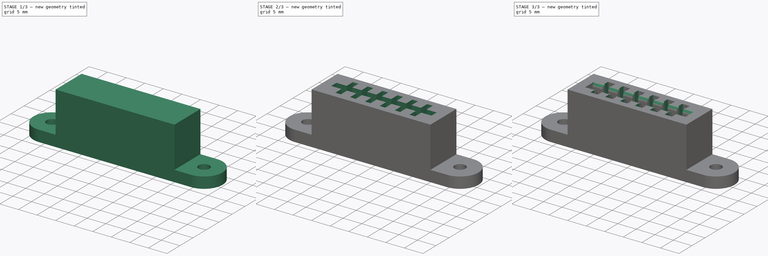
[diagram: build sequence overview — one tinted view per stage of 3, left to right]
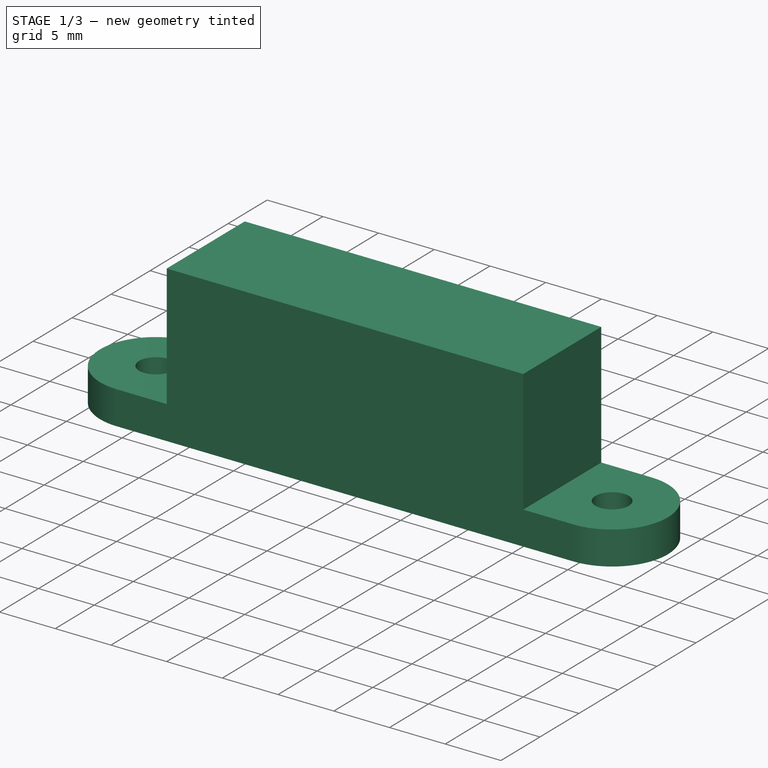
[diagram: stage 1 of 3 — iso view after this stage's code; geometry added in this stage tinted green]
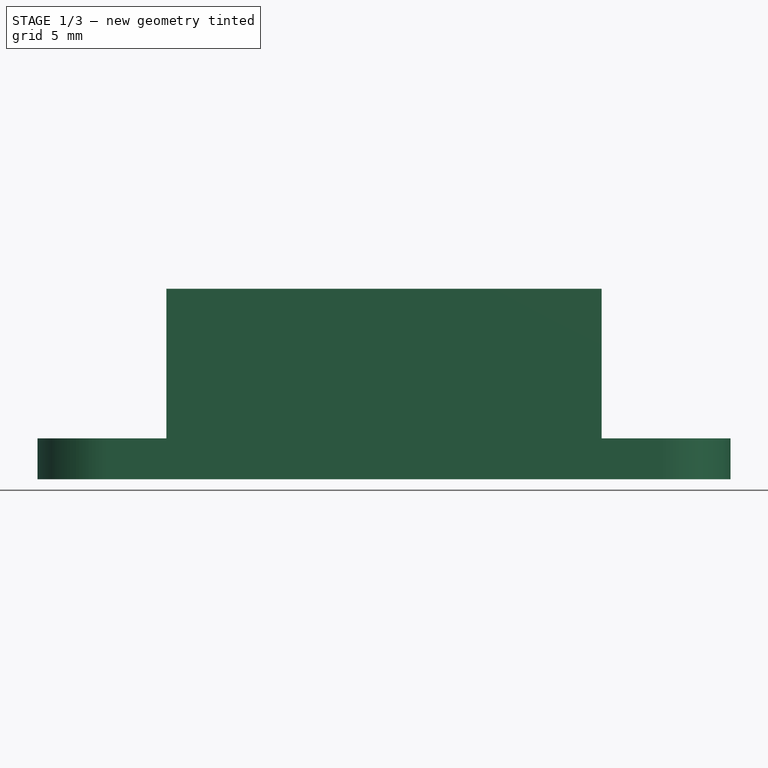
[diagram: stage 1 of 3 — front view after this stage's code; geometry added in this stage tinted green]
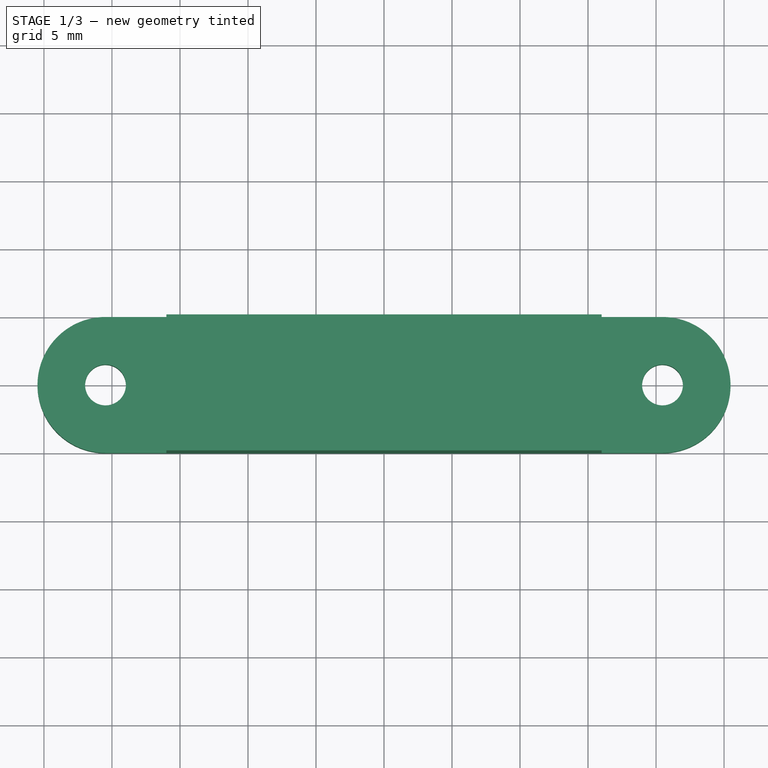
[diagram: stage 1 of 3 — top view after this stage's code; geometry added in this stage tinted green]
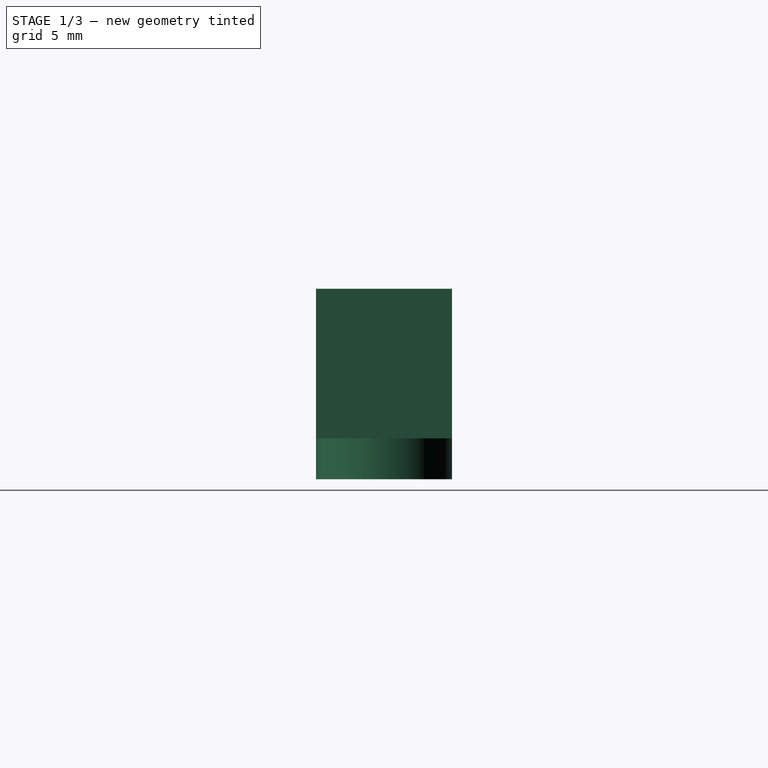
[diagram: stage 1 of 3 — right view after this stage's code; geometry added in this stage tinted green]
FCSTD DOCUMENT  (FreeCAD 0.16R6704 (Git))
Label: CONECTOR_COMMODORE
License: All rights reserved
LicenseURL: http://en.wikipedia.org/wiki/All_rights_reserved
objects: Sketcher::SketchObject×6, PartDesign::Pocket×4, PartDesign::Pad×2, PartDesign::Fillet×1
note: 19 computed .brp shape members not serialized (recipe doc carries the construction recipe); baked Part::Feature solids carry a one-line shape summary decoded from their .brp

FEATURE [Sketcher::SketchObject] Sketch
  sketch-geometry (4):
    g0: LineSegment StartX=-16 StartY=5 StartZ=0 EndX=16 EndY=5 EndZ=0
    g1: LineSegment StartX=16 StartY=5 StartZ=0 EndX=16 EndY=-5 EndZ=0
    g2: LineSegment StartX=16 StartY=-5 StartZ=0 EndX=-16 EndY=-5 EndZ=0
    g3: LineSegment StartX=-16 StartY=-5 StartZ=0 EndX=-16 EndY=5 EndZ=0
  constraints (12):
    c: Coincident(g0,g1)
    c: Coincident(g1,g2)
    c: Coincident(g2,g3)
    c: Coincident(g3,g0)
    c: Horizontal(g0)
    c: Horizontal(g2)
    c: Vertical(g1)
    c: Vertical(g3)
    c: Symmetric(g2,g0,g-1)
    c: Symmetric(g0,g0,g-2)
    c: DistanceX(g0,g0) = 32
    c: DistanceY(g1,g1) = 10
FEATURE [PartDesign::Pad] Pad
  Length = 14
  Length2 = 100
  Sketch = -> Sketch
  Type = 0
FEATURE [Sketcher::SketchObject] Sketch001
  ExternalGeometry = -> [Pad]
  Placement = pos=(0,0,0) rot=(1,0,0;3.14159rad)
  Support = -> Pad [Face5]
  sketch-geometry (6):
    g0: ArcOfCircle CenterX=-20.4745 CenterY=0 CenterZ=0 NormalX=0 NormalY=0 NormalZ=1 Radius=5 StartAngle=1.5708 EndAngle=4.71239
    g1: ArcOfCircle CenterX=20.4745 CenterY=0 CenterZ=0 NormalX=0 NormalY=0 NormalZ=1 Radius=5 StartAngle=4.71239 EndAngle=7.85398
    g2: LineSegment StartX=-20.4745 StartY=5 StartZ=0 EndX=20.4745 EndY=5 EndZ=0
    g3: LineSegment StartX=-20.4745 StartY=-5 StartZ=0 EndX=20.4745 EndY=-5 EndZ=0
    g4: Circle CenterX=-20.4745 CenterY=0 CenterZ=0 NormalX=0 NormalY=0 NormalZ=1 Radius=1.5
    g5: Circle CenterX=20.4745 CenterY=0 CenterZ=0 NormalX=0 NormalY=0 NormalZ=1 Radius=1.5
  constraints (17):
    c: PointOnObject(g0,g-1)
    c: PointOnObject(g1,g-1)
    c: Coincident(g2,g0)
    c: Coincident(g2,g1)
    c: Horizontal(g2)
    c: Coincident(g3,g0)
    c: Coincident(g3,g1)
    c: Horizontal(g3)
    c: PointOnObject(g-3,g2)
    c: PointOnObject(g-4,g3)
    c: Symmetric(g0,g1,g-2)
    c: Tangent(g1,g3)
    c: Coincident(g4,g0)
    c: Radius(g4) = 1.5
    c: Coincident(g5,g1)
    c: Radius(g5) = 1.5
    c: Tangent(g3,g0)
FEATURE [PartDesign::Pad] Pad001
  Length = 3
  Length2 = 100
  Reversed = true
  Sketch = -> Sketch001
  Type = 0
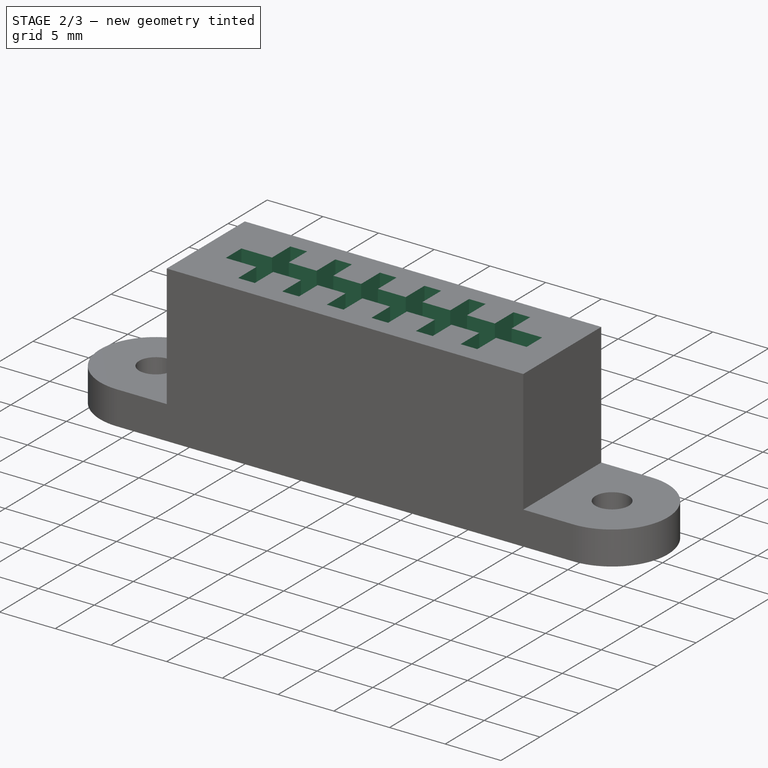
[diagram: stage 2 of 3 — iso view after this stage's code; geometry added in this stage tinted green]
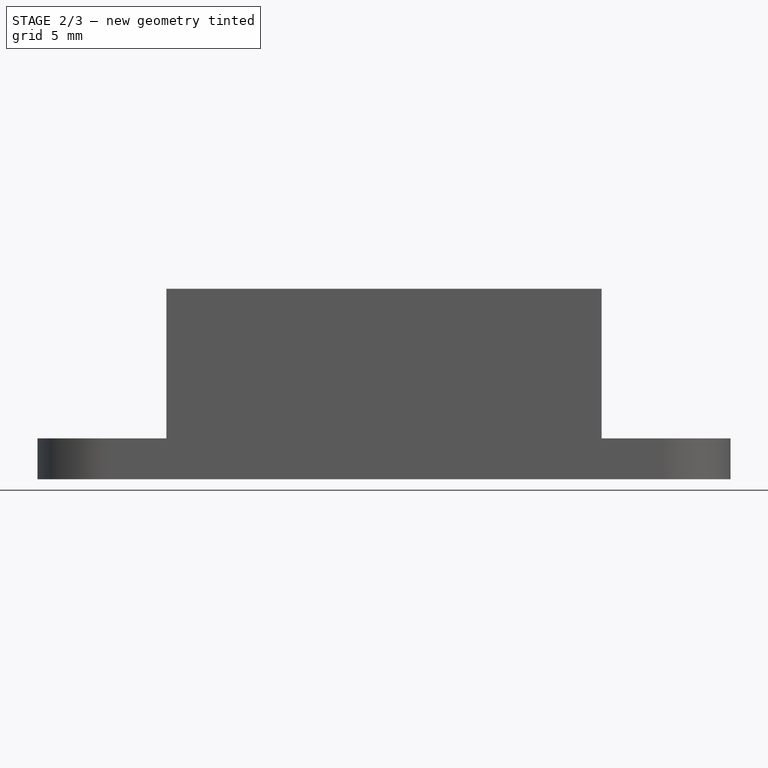
[diagram: stage 2 of 3 — front view after this stage's code; geometry added in this stage tinted green]
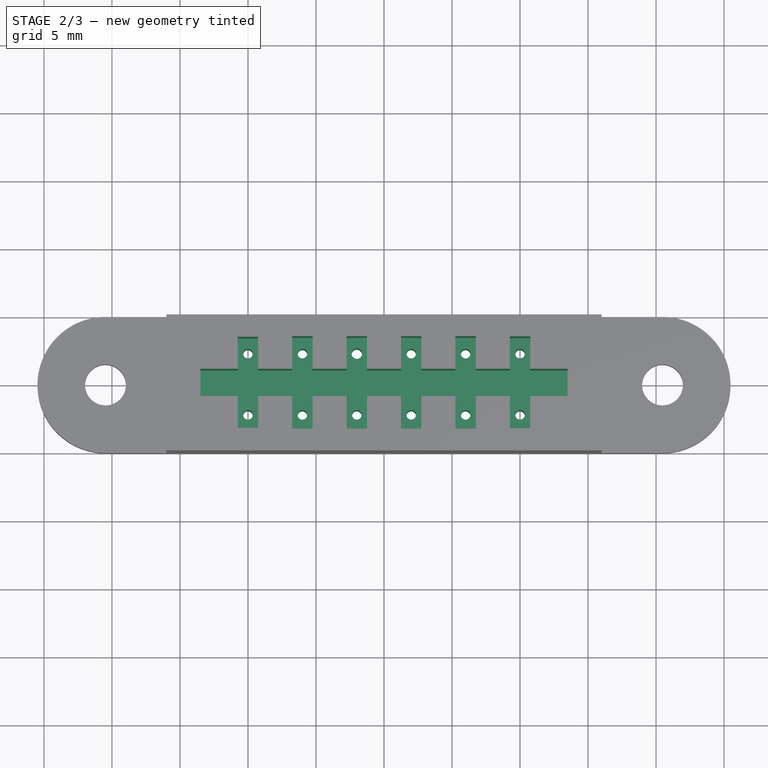
[diagram: stage 2 of 3 — top view after this stage's code; geometry added in this stage tinted green]
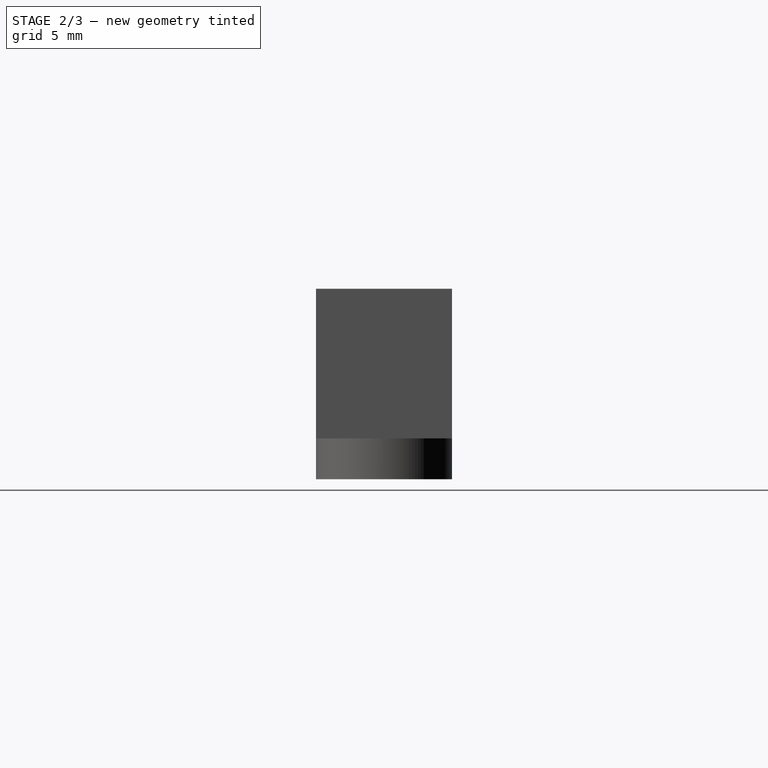
[diagram: stage 2 of 3 — right view after this stage's code; geometry added in this stage tinted green]
FEATURE [Sketcher::SketchObject] Sketch002
  Placement = pos=(0,0,14) rot=(0,0,1;0rad)
  Support = -> Pad001 [Face1]
  sketch-geometry (4):
    g0: LineSegment StartX=-13.5 StartY=1 StartZ=0 EndX=13.5 EndY=1 EndZ=0
    g1: LineSegment StartX=13.5 StartY=1 StartZ=0 EndX=13.5 EndY=-1 EndZ=0
    g2: LineSegment StartX=13.5 StartY=-1 StartZ=0 EndX=-13.5 EndY=-1 EndZ=0
    g3: LineSegment StartX=-13.5 StartY=-1 StartZ=0 EndX=-13.5 EndY=1 EndZ=0
  constraints (12):
    c: Coincident(g0,g1)
    c: Coincident(g1,g2)
    c: Coincident(g2,g3)
    c: Coincident(g3,g0)
    c: Horizontal(g0)
    c: Horizontal(g2)
    c: Vertical(g1)
    c: Vertical(g3)
    c: Symmetric(g2,g0,g-1)
    c: Symmetric(g0,g0,g-2)
    c: DistanceY(g1,g1) = 2
    c: DistanceX(g0,g0) = 27
FEATURE [PartDesign::Pocket] Pocket
  Length = 8
  Sketch = -> Sketch002
  Type = 0
FEATURE [Sketcher::SketchObject] Sketch003
  Placement = pos=(0,0,0) rot=(1,0,0;3.14159rad)
  Support = -> Pocket [Face15]
  sketch-geometry (12):
    g0: Circle CenterX=-10 CenterY=2.25 CenterZ=0 NormalX=0 NormalY=0 NormalZ=1 Radius=0.35
    g1: Circle CenterX=-6 CenterY=2.25 CenterZ=0 NormalX=0 NormalY=0 NormalZ=1 Radius=0.35
    g2: Circle CenterX=-2 CenterY=2.25 CenterZ=0 NormalX=0 NormalY=0 NormalZ=1 Radius=0.35
    g3: Circle CenterX=2 CenterY=2.25 CenterZ=0 NormalX=0 NormalY=0 NormalZ=1 Radius=0.35
    g4: Circle CenterX=6 CenterY=2.25 CenterZ=0 NormalX=0 NormalY=0 NormalZ=1 Radius=0.35
    g5: Circle CenterX=10 CenterY=2.25 CenterZ=0 NormalX=0 NormalY=0 NormalZ=1 Radius=0.35
    g6: Circle CenterX=-10 CenterY=-2.25 CenterZ=0 NormalX=0 NormalY=0 NormalZ=1 Radius=0.35
    g7: Circle CenterX=-6 CenterY=-2.25 CenterZ=0 NormalX=0 NormalY=0 NormalZ=1 Radius=0.35
    g8: Circle CenterX=-2 CenterY=-2.25 CenterZ=0 NormalX=0 NormalY=0 NormalZ=1 Radius=0.383924
    g9: Circle CenterX=2 CenterY=-2.25 CenterZ=0 NormalX=0 NormalY=0 NormalZ=1 Radius=0.35
    g10: Circle CenterX=6 CenterY=-2.25 CenterZ=0 NormalX=0 NormalY=0 NormalZ=1 Radius=0.35
    g11: Circle CenterX=10 CenterY=-2.25 CenterZ=0 NormalX=0 NormalY=0 NormalZ=1 Radius=0.35
  constraints (29):
    c: Radius(g0) = 0.35
    c: Radius(g1) = 0.35
    c: Radius(g2) = 0.35
    c: Radius(g3) = 0.35
    c: Radius(g4) = 0.35
    c: Radius(g5) = 0.35
    c: Radius(g6) = 0.35
    c: Radius(g7) = 0.35
    c: Radius(g9) = 0.35
    c: Radius(g10) = 0.35
    c: Radius(g11) = 0.35
    c: Symmetric(g6,g0,g-1)
    c: Symmetric(g7,g1,g-1)
    c: Symmetric(g8,g2,g-1)
    c: Symmetric(g9,g3,g-1)
    c: Symmetric(g10,g4,g-1)
    c: Symmetric(g11,g5,g-1)
    c: DistanceY(g6,g0) = 4.5
    c: DistanceY(g7,g1) = 4.5
    c: DistanceY(g8,g2) = 4.5
    c: DistanceY(g9,g3) = 4.5
    c: DistanceY(g10,g4) = 4.5
    c: DistanceY(g11,g5) = 4.5
    c: Symmetric(g3,g2,g-2)
    c: DistanceX(g2,g3) = 4
    c: DistanceX(g1,g2) = 4
    c: DistanceX(g0,g1) = 4
    c: DistanceX(g3,g4) = 4
    c: DistanceX(g4,g5) = 4
FEATURE [PartDesign::Pocket] Pocket001
  Length = 18
  Sketch = -> Sketch003
  Type = 0
FEATURE [Sketcher::SketchObject] Sketch004
  Placement = pos=(0,0,14) rot=(0,0,1;0rad)
  Support = -> Pocket001 [Face1]
  sketch-geometry (24):
    g0: LineSegment StartX=-10.75 StartY=3.35 StartZ=0 EndX=-9.25 EndY=3.35 EndZ=0
    g1: LineSegment StartX=-9.25 StartY=3.35 StartZ=0 EndX=-9.25 EndY=-3.35 EndZ=0
    g2: LineSegment StartX=-9.25 StartY=-3.35 StartZ=0 EndX=-10.75 EndY=-3.35 EndZ=0
    g3: LineSegment StartX=-10.75 StartY=-3.35 StartZ=0 EndX=-10.75 EndY=3.35 EndZ=0
    g4: LineSegment StartX=-6.75 StartY=3.4 StartZ=0 EndX=-5.25 EndY=3.4 EndZ=0
    g5: LineSegment StartX=-5.25 StartY=3.4 StartZ=0 EndX=-5.25 EndY=-3.4 EndZ=0
    g6: LineSegment StartX=-5.25 StartY=-3.4 StartZ=0 EndX=-6.75 EndY=-3.4 EndZ=0
    g7: LineSegment StartX=-6.75 StartY=-3.4 StartZ=0 EndX=-6.75 EndY=3.4 EndZ=0
    g8: LineSegment StartX=-2.75 StartY=3.4 StartZ=0 EndX=-1.25 EndY=3.4 EndZ=0
    g9: LineSegment StartX=-1.25 StartY=3.4 StartZ=0 EndX=-1.25 EndY=-3.4 EndZ=0
    g10: LineSegment StartX=-1.25 StartY=-3.4 StartZ=0 EndX=-2.75 EndY=-3.4 EndZ=0
    g11: LineSegment StartX=-2.75 StartY=-3.4 StartZ=0 EndX=-2.75 EndY=3.4 EndZ=0
    g12: LineSegment StartX=1.25 StartY=3.4 StartZ=0 EndX=2.75 EndY=3.4 EndZ=0
    g13: LineSegment StartX=2.75 StartY=3.4 StartZ=0 EndX=2.75 EndY=-3.4 EndZ=0
    g14: LineSegment StartX=2.75 StartY=-3.4 StartZ=0 EndX=1.25 EndY=-3.4 EndZ=0
    g15: LineSegment StartX=1.25 StartY=-3.4 StartZ=0 EndX=1.25 EndY=3.4 EndZ=0
    g16: LineSegment StartX=5.25 StartY=3.4 StartZ=0 EndX=6.75 EndY=3.4 EndZ=0
    g17: LineSegment StartX=6.75 StartY=3.4 StartZ=0 EndX=6.75 EndY=-3.4 EndZ=0
    g18: LineSegment StartX=6.75 StartY=-3.4 StartZ=0 EndX=5.25 EndY=-3.4 EndZ=0
    g19: LineSegment StartX=5.25 StartY=-3.4 StartZ=0 EndX=5.25 EndY=3.4 EndZ=0
    g20: LineSegment StartX=9.25 StartY=3.38583 StartZ=0 EndX=10.75 EndY=3.38583 EndZ=0
    g21: LineSegment StartX=10.75 StartY=3.38583 StartZ=0 EndX=10.75 EndY=-3.38583 EndZ=0
    g22: LineSegment StartX=10.75 StartY=-3.38583 StartZ=0 EndX=9.25 EndY=-3.38583 EndZ=0
    g23: LineSegment StartX=9.25 StartY=-3.38583 StartZ=0 EndX=9.25 EndY=3.38583 EndZ=0
  constraints (71):
    c: Coincident(g0,g1)
    c: Coincident(g1,g2)
    c: Coincident(g2,g3)
    c: Coincident(g3,g0)
    c: Horizontal(g0)
    c: Horizontal(g2)
    c: Vertical(g1)
    c: Vertical(g3)
    c: Coincident(g4,g5)
    c: Coincident(g5,g6)
    c: Coincident(g6,g7)
    c: Coincident(g7,g4)
    c: Horizontal(g4)
    c: Horizontal(g6)
    c: Vertical(g5)
    c: Vertical(g7)
    c: Coincident(g8,g9)
    c: Coincident(g9,g10)
    c: Coincident(g10,g11)
    c: Coincident(g11,g8)
    c: Horizontal(g8)
    c: Horizontal(g10)
    c: Vertical(g9)
    c: Vertical(g11)
    c: Coincident(g12,g13)
    c: Coincident(g13,g14)
    c: Coincident(g14,g15)
    c: Coincident(g15,g12)
    c: Horizontal(g12)
    c: Horizontal(g14)
    c: Vertical(g13)
    c: Vertical(g15)
    c: Coincident(g16,g17)
    c: Coincident(g17,g18)
    c: Coincident(g18,g19)
    c: Coincident(g19,g16)
    c: Horizontal(g16)
    c: Horizontal(g18)
    c: Vertical(g17)
    c: Vertical(g19)
    c: DistanceY(g1,g1) = 6.7
    c: DistanceY(g5,g5) = 6.8
    c: DistanceY(g9,g9) = 6.8
    c: DistanceY(g13,g13) = 6.8
    c: DistanceY(g17,g17) = 6.8
    c: Symmetric(g0,g1,g-1)
    c: Symmetric(g4,g5,g-1)
    c: Symmetric(g8,g9,g-1)
    c: Symmetric(g12,g13,g-1)
    c: Symmetric(g16,g17,g-1)
    c: Coincident(g20,g21)
    c: Coincident(g21,g22)
    c: Coincident(g22,g23)
    c: Coincident(g23,g20)
    c: Horizontal(g20)
    c: Horizontal(g22)
    c: Vertical(g21)
    c: Vertical(g23)
    c: Symmetric(g21,g20,g-1)
    c: DistanceX(g0,g0) = 1.5
    c: DistanceX(g4,g4) = 1.5
    c: DistanceX(g8,g8) = 1.5
    c: DistanceX(g12,g12) = 1.5
    c: DistanceX(g16,g16) = 1.5
    c: DistanceX(g20,g20) = 1.5
    c: DistanceX(g0,g4) = 4
    c: DistanceX(g4,g8) = 4
    c: DistanceX(g8,g12) = 4
    c: DistanceX(g12,g16) = 4
    c: DistanceX(g16,g20) = 4
    c: Symmetric(g8,g12,g-2)
FEATURE [PartDesign::Pocket] Pocket002
  Length = 8
  Sketch = -> Sketch004
  Type = 0
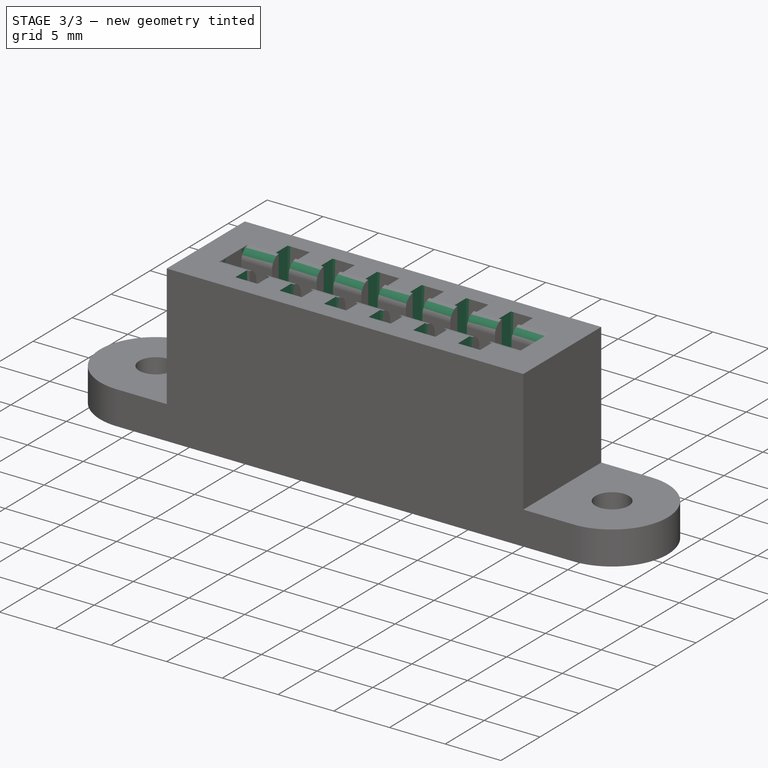
[diagram: stage 3 of 3 — iso view after this stage's code; geometry added in this stage tinted green]
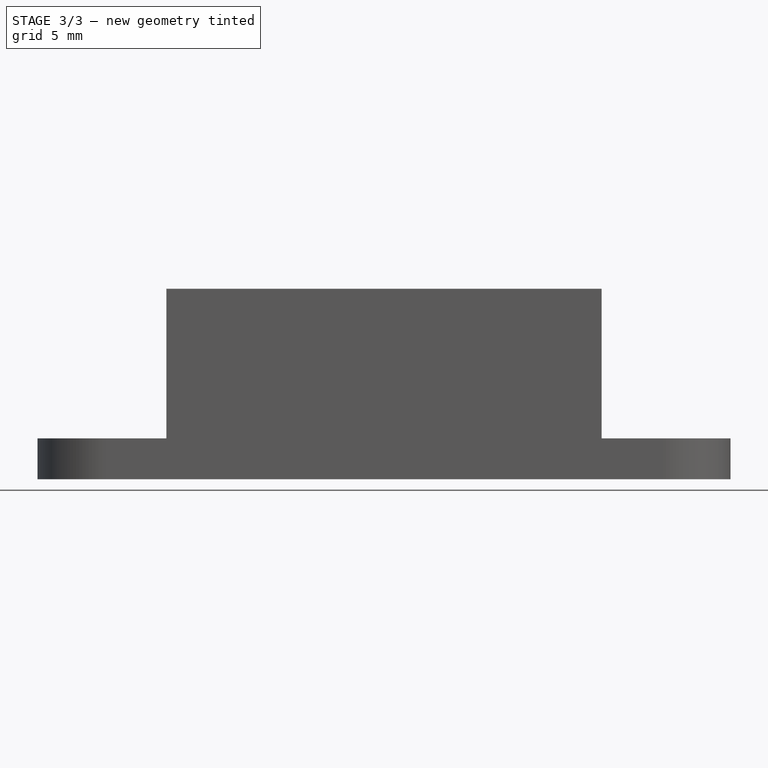
[diagram: stage 3 of 3 — front view after this stage's code; geometry added in this stage tinted green]
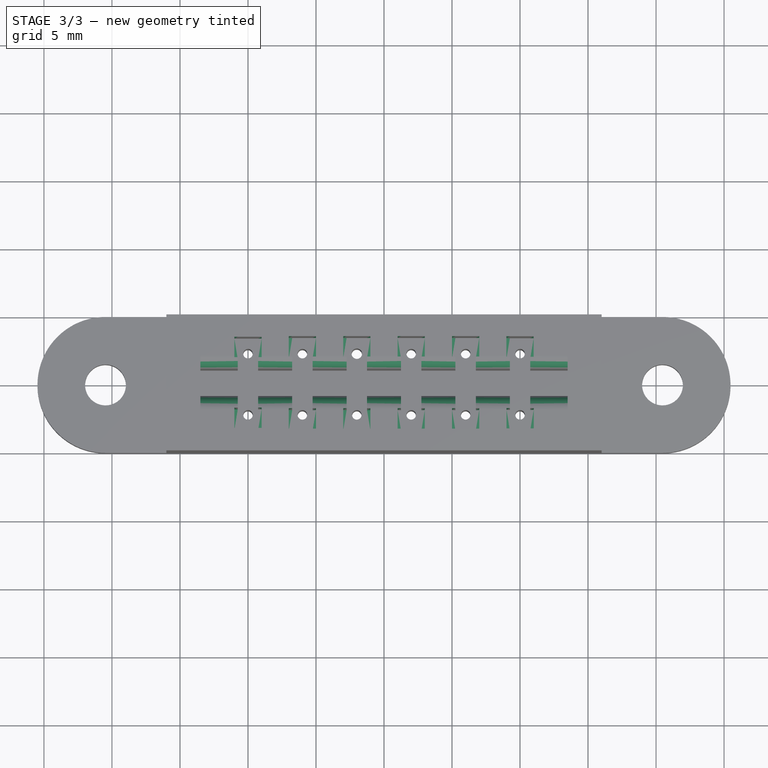
[diagram: stage 3 of 3 — top view after this stage's code; geometry added in this stage tinted green]
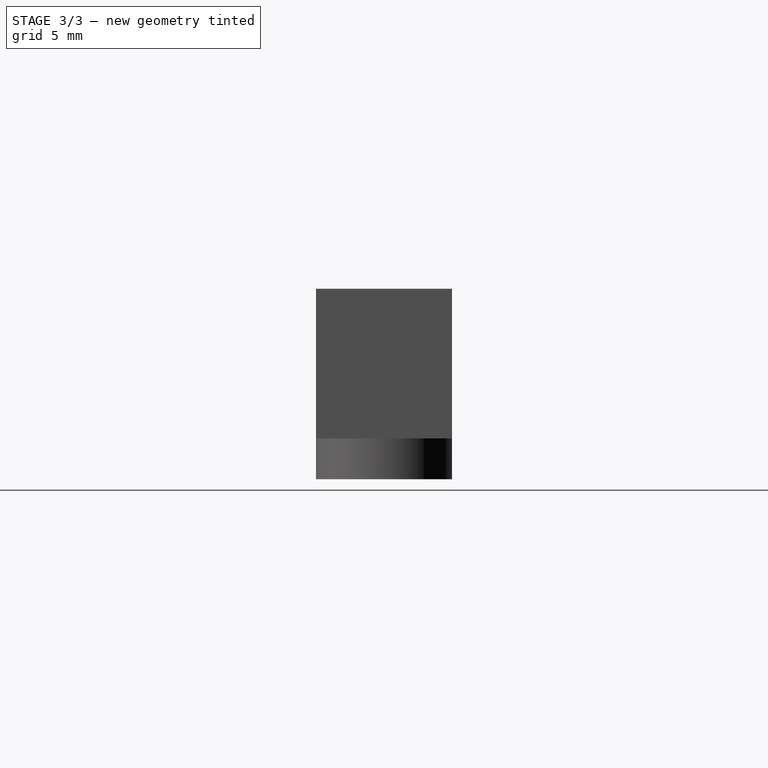
[diagram: stage 3 of 3 — right view after this stage's code; geometry added in this stage tinted green]
FEATURE [Sketcher::SketchObject] Sketch005
  ExternalGeometry = -> [Pocket002]
  Placement = pos=(0,0,14) rot=(0,0,1;0rad)
  Support = -> Pocket002 [Face1]
  sketch-geometry (48):
    g0: LineSegment StartX=-11 StartY=3.35 StartZ=0 EndX=-9 EndY=3.35 EndZ=0
    g1: LineSegment StartX=-9 StartY=3.35 StartZ=0 EndX=-9 EndY=1.85 EndZ=0
    g2: LineSegment StartX=-9 StartY=1.85 StartZ=0 EndX=-11 EndY=1.85 EndZ=0
    g3: LineSegment StartX=-11 StartY=1.85 StartZ=0 EndX=-11 EndY=3.35 EndZ=0
    g4: LineSegment StartX=-7 StartY=3.4 StartZ=0 EndX=-5 EndY=3.4 EndZ=0
    g5: LineSegment StartX=-5 StartY=3.4 StartZ=0 EndX=-5 EndY=1.9 EndZ=0
    g6: LineSegment StartX=-5 StartY=1.9 StartZ=0 EndX=-7 EndY=1.9 EndZ=0
    g7: LineSegment StartX=-7 StartY=1.9 StartZ=0 EndX=-7 EndY=3.4 EndZ=0
    g8: LineSegment StartX=-3 StartY=3.4 StartZ=0 EndX=-1 EndY=3.4 EndZ=0
    g9: LineSegment StartX=-1 StartY=3.4 StartZ=0 EndX=-1 EndY=1.9 EndZ=0
    g10: LineSegment StartX=-1 StartY=1.9 StartZ=0 EndX=-3 EndY=1.9 EndZ=0
    g11: LineSegment StartX=-3 StartY=1.9 StartZ=0 EndX=-3 EndY=3.4 EndZ=0
    g12: LineSegment StartX=3 StartY=1.9 StartZ=0 EndX=1 EndY=1.9 EndZ=0
    g13: LineSegment StartX=1 StartY=1.9 StartZ=0 EndX=1 EndY=3.4 EndZ=0
    g14: LineSegment StartX=1 StartY=3.4 StartZ=0 EndX=3 EndY=3.4 EndZ=0
    g15: LineSegment StartX=3 StartY=3.4 StartZ=0 EndX=3 EndY=1.9 EndZ=0
    g16: LineSegment StartX=5 StartY=3.4 StartZ=0 EndX=7 EndY=3.4 EndZ=0
    g17: LineSegment StartX=7 StartY=3.4 StartZ=0 EndX=7 EndY=1.9 EndZ=0
    g18: LineSegment StartX=7 StartY=1.9 StartZ=0 EndX=5 EndY=1.9 EndZ=0
    g19: LineSegment StartX=5 StartY=1.9 StartZ=0 EndX=5 EndY=3.4 EndZ=0
    g20: LineSegment StartX=9 StartY=3.38583 StartZ=0 EndX=11 EndY=3.38583 EndZ=0
    g21: LineSegment StartX=11 StartY=3.38583 StartZ=0 EndX=11 EndY=1.88583 EndZ=0
    g22: LineSegment StartX=11 StartY=1.88583 StartZ=0 EndX=9 EndY=1.88583 EndZ=0
    g23: LineSegment StartX=9 StartY=1.88583 StartZ=0 EndX=9 EndY=3.38583 EndZ=0
    g24: LineSegment StartX=-11 StartY=-1.85 StartZ=0 EndX=-9 EndY=-1.85 EndZ=0
    g25: LineSegment StartX=-9 StartY=-1.85 StartZ=0 EndX=-9 EndY=-3.35 EndZ=0
    g26: LineSegment StartX=-9 StartY=-3.35 StartZ=0 EndX=-11 EndY=-3.35 EndZ=0
    g27: LineSegment StartX=-11 StartY=-3.35 StartZ=0 EndX=-11 EndY=-1.85 EndZ=0
    g28: LineSegment StartX=-7 StartY=-1.9 StartZ=0 EndX=-5 EndY=-1.9 EndZ=0
    g29: LineSegment StartX=-5 StartY=-1.9 StartZ=0 EndX=-5 EndY=-3.4 EndZ=0
    g30: LineSegment StartX=-5 StartY=-3.4 StartZ=0 EndX=-7 EndY=-3.4 EndZ=0
    g31: LineSegment StartX=-7 StartY=-3.4 StartZ=0 EndX=-7 EndY=-1.9 EndZ=0
    g32: LineSegment StartX=-3 StartY=-1.9 StartZ=0 EndX=-1 EndY=-1.9 EndZ=0
    g33: LineSegment StartX=-1 StartY=-1.9 StartZ=0 EndX=-1 EndY=-3.4 EndZ=0
    g34: LineSegment StartX=-1 StartY=-3.4 StartZ=0 EndX=-3 EndY=-3.4 EndZ=0
    g35: LineSegment StartX=-3 StartY=-3.4 StartZ=0 EndX=-3 EndY=-1.9 EndZ=0
    g36: LineSegment StartX=1 StartY=-1.9 StartZ=0 EndX=3 EndY=-1.9 EndZ=0
    g37: LineSegment StartX=3 StartY=-1.9 StartZ=0 EndX=3 EndY=-3.4 EndZ=0
    g38: LineSegment StartX=3 StartY=-3.4 StartZ=0 EndX=1 EndY=-3.4 EndZ=0
    g39: LineSegment StartX=1 StartY=-3.4 StartZ=0 EndX=1 EndY=-1.9 EndZ=0
    g40: LineSegment StartX=5 StartY=-1.9 StartZ=0 EndX=7 EndY=-1.9 EndZ=0
    g41: LineSegment StartX=7 StartY=-1.9 StartZ=0 EndX=7 EndY=-3.4 EndZ=0
    g42: LineSegment StartX=7 StartY=-3.4 StartZ=0 EndX=5 EndY=-3.4 EndZ=0
    g43: LineSegment StartX=5 StartY=-3.4 StartZ=0 EndX=5 EndY=-1.9 EndZ=0
    g44: LineSegment StartX=9.00535 StartY=-3.38583 StartZ=0 EndX=11.0054 EndY=-3.38583 EndZ=0
    g45: LineSegment StartX=11.0054 StartY=-3.38583 StartZ=0 EndX=11.0054 EndY=-1.88583 EndZ=0
    g46: LineSegment StartX=11.0054 StartY=-1.88583 StartZ=0 EndX=9.00535 EndY=-1.88583 EndZ=0
    g47: LineSegment StartX=9.00535 StartY=-1.88583 StartZ=0 EndX=9.00535 EndY=-3.38583 EndZ=0
  constraints (143):
    c: Coincident(g0,g1)
    c: Coincident(g1,g2)
    c: Coincident(g2,g3)
    c: Coincident(g3,g0)
    c: Horizontal(g0)
    c: Horizontal(g2)
    c: Vertical(g1)
    c: Vertical(g3)
    c: Coincident(g4,g5)
    c: Coincident(g5,g6)
    c: Coincident(g6,g7)
    c: Coincident(g7,g4)
    c: Horizontal(g4)
    c: Horizontal(g6)
    c: Vertical(g5)
    c: Vertical(g7)
    c: Coincident(g8,g9)
    c: Coincident(g9,g10)
    c: Coincident(g10,g11)
    c: Coincident(g11,g8)
    c: Horizontal(g8)
    c: Horizontal(g10)
    c: Vertical(g9)
    c: Vertical(g11)
    c: Coincident(g12,g13)
    c: Coincident(g13,g14)
    c: Coincident(g14,g15)
    c: Coincident(g15,g12)
    c: Horizontal(g12)
    c: Horizontal(g14)
    c: Vertical(g13)
    c: Vertical(g15)
    c: Coincident(g16,g17)
    c: Coincident(g17,g18)
    c: Coincident(g18,g19)
    c: Coincident(g19,g16)
    c: Horizontal(g16)
    c: Horizontal(g18)
    c: Vertical(g17)
    c: Vertical(g19)
    c: Coincident(g20,g21)
    c: Coincident(g21,g22)
    c: Coincident(g22,g23)
    c: Coincident(g23,g20)
    c: Horizontal(g20)
    c: Horizontal(g22)
    c: Vertical(g21)
    c: Vertical(g23)
    c: Coincident(g24,g25)
    c: Coincident(g25,g26)
    c: Coincident(g26,g27)
    c: Coincident(g27,g24)
    c: Horizontal(g24)
    c: Horizontal(g26)
    c: Vertical(g25)
    c: Vertical(g27)
    c: Coincident(g28,g29)
    c: Coincident(g29,g30)
    c: Coincident(g30,g31)
    c: Coincident(g31,g28)
    c: Horizontal(g28)
    c: Horizontal(g30)
    c: Vertical(g29)
    c: Vertical(g31)
    c: Coincident(g32,g33)
    c: Coincident(g33,g34)
    c: Coincident(g34,g35)
    c: Coincident(g35,g32)
    c: Horizontal(g32)
    c: Horizontal(g34)
    c: Vertical(g33)
    c: Vertical(g35)
    c: Coincident(g36,g37)
    c: Coincident(g37,g38)
    c: Coincident(g38,g39)
    c: Coincident(g39,g36)
    c: Horizontal(g36)
    c: Horizontal(g38)
    c: Vertical(g37)
    c: Vertical(g39)
    c: Coincident(g40,g41)
    c: Coincident(g41,g42)
    c: Coincident(g42,g43)
    c: Coincident(g43,g40)
    c: Horizontal(g40)
    c: Horizontal(g42)
    c: Vertical(g41)
    c: Vertical(g43)
    c: Coincident(g44,g45)
    c: Coincident(g45,g46)
    c: Coincident(g46,g47)
    c: Coincident(g47,g44)
    c: Horizontal(g44)
    c: Horizontal(g46)
    c: Vertical(g45)
    c: Vertical(g47)
    c: DistanceX(g0,g0) = 2
    c: DistanceX(g4,g4) = 2
    c: DistanceX(g8,g8) = 2
    c: DistanceX(g14,g14) = 2
    c: DistanceX(g16,g16) = 2
    c: DistanceX(g20,g20) = 2
    c: DistanceX(g26,g26) = 2
    c: DistanceX(g30,g30) = 2
    c: DistanceX(g34,g34) = 2
    c: DistanceX(g38,g38) = 2
    c: DistanceX(g42,g42) = 2
    c: DistanceX(g44,g44) = 2
    c: DistanceY(g1,g1) = 1.5
    c: DistanceY(g5,g5) = 1.5
    c: DistanceY(g11,g11) = 1.5
    c: DistanceY(g13,g13) = 1.5
    c: DistanceY(g19,g19) = 1.5
    c: DistanceY(g23,g23) = 1.5
    c: DistanceY(g27,g27) = 1.5
    c: DistanceY(g31,g31) = 1.5
    c: DistanceY(g35,g35) = 1.5
    c: DistanceY(g39,g39) = 1.5
    c: DistanceY(g43,g43) = 1.5
    c: DistanceY(g47,g47) = 1.5
    c: PointOnObject(g-3,g0)
    c: PointOnObject(g-4,g4)
    c: PointOnObject(g-5,g8)
    c: PointOnObject(g-6,g14)
    c: PointOnObject(g-7,g16)
    c: PointOnObject(g-8,g20)
    c: PointOnObject(g-9,g26)
    c: PointOnObject(g-10,g30)
    c: PointOnObject(g-11,g34)
    c: PointOnObject(g-12,g38)
    c: PointOnObject(g-13,g42)
    c: PointOnObject(g-14,g44)
    c: DistanceX(g0,g4) = 4
    c: DistanceX(g4,g8) = 4
    c: DistanceX(g8,g14) = 4
    c: DistanceX(g14,g16) = 4
    c: DistanceX(g25,g29) = 4
    c: DistanceX(g29,g33) = 4
    c: DistanceX(g33,g37) = 4
    c: DistanceX(g37,g41) = 4
    c: Symmetric(g8,g13,g-2)
    c: Symmetric(g33,g38,g-2)
    c: DistanceX(g16,g20) = 4
FEATURE [PartDesign::Pocket] Pocket003
  Length = 8
  Sketch = -> Sketch005
  Type = 0
FEATURE [PartDesign::Fillet] Fillet
  Base = -> Pocket003 [Edge64,Edge54,Edge44,Edge34,Edge24,Edge14,Edge128,Edge126,Edge116,Edge106,Edge96,Edge86,Edge76,Edge66]
  Radius = 1
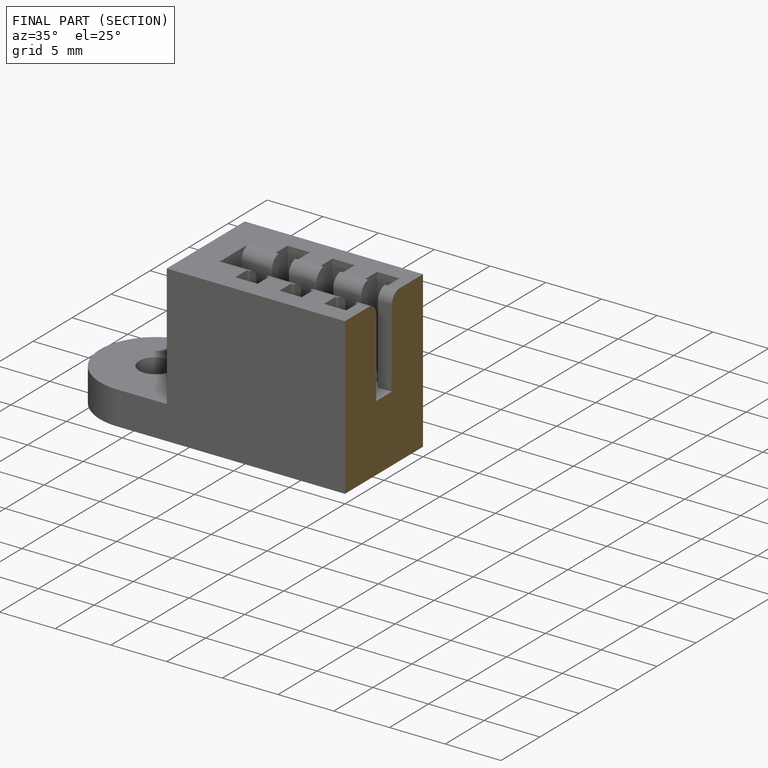
[diagram: finished part — half-section view (interior)]
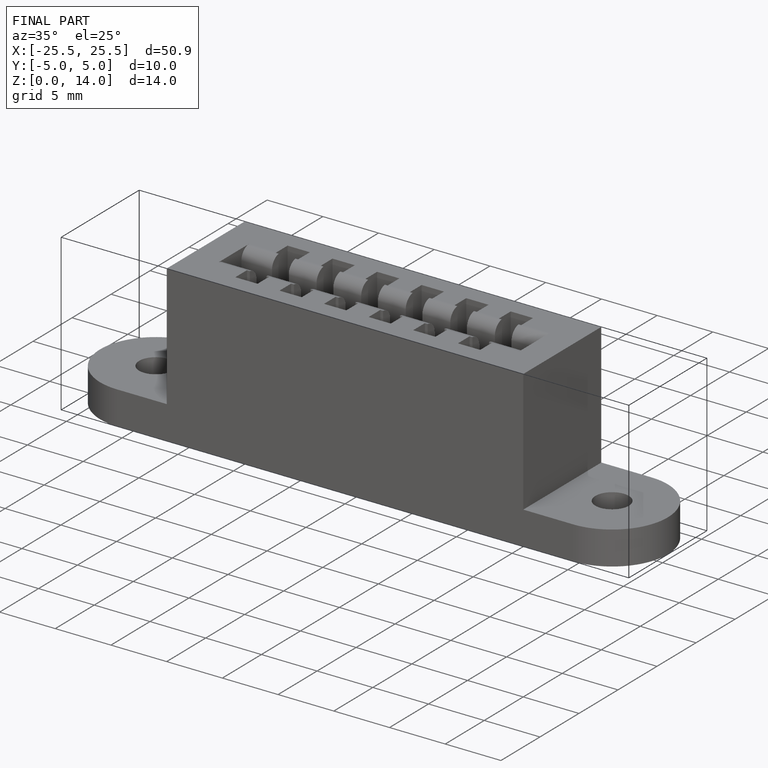
[diagram: finished part — iso view with bounding-box wireframe]
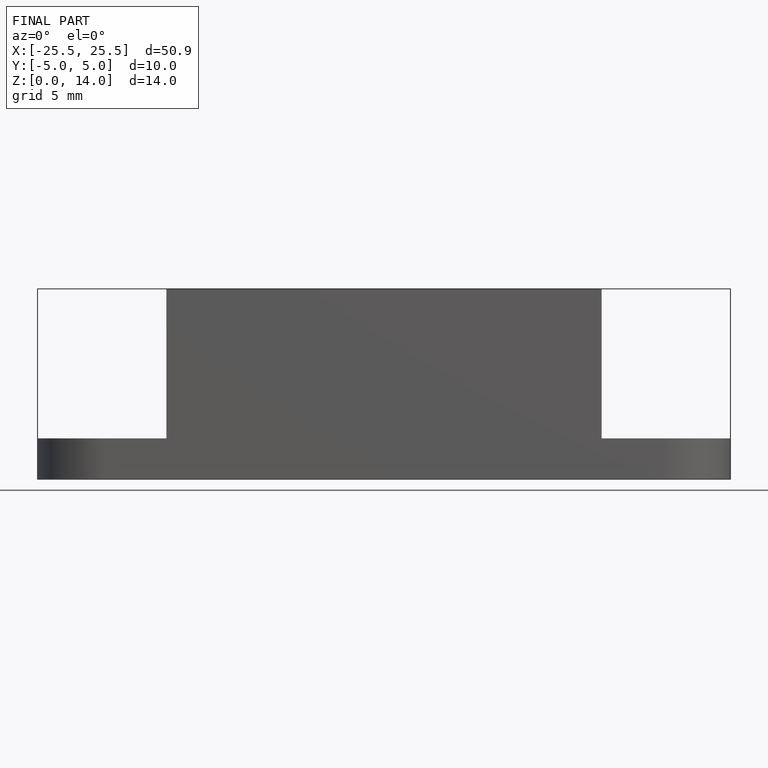
[diagram: finished part — front view with bounding-box wireframe]
